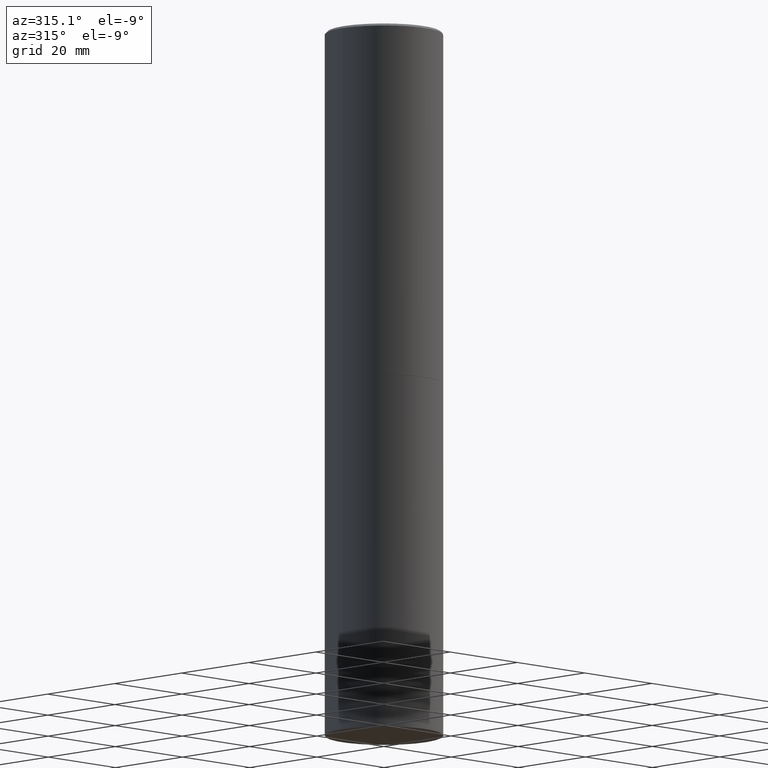
[diagram: clean part render]
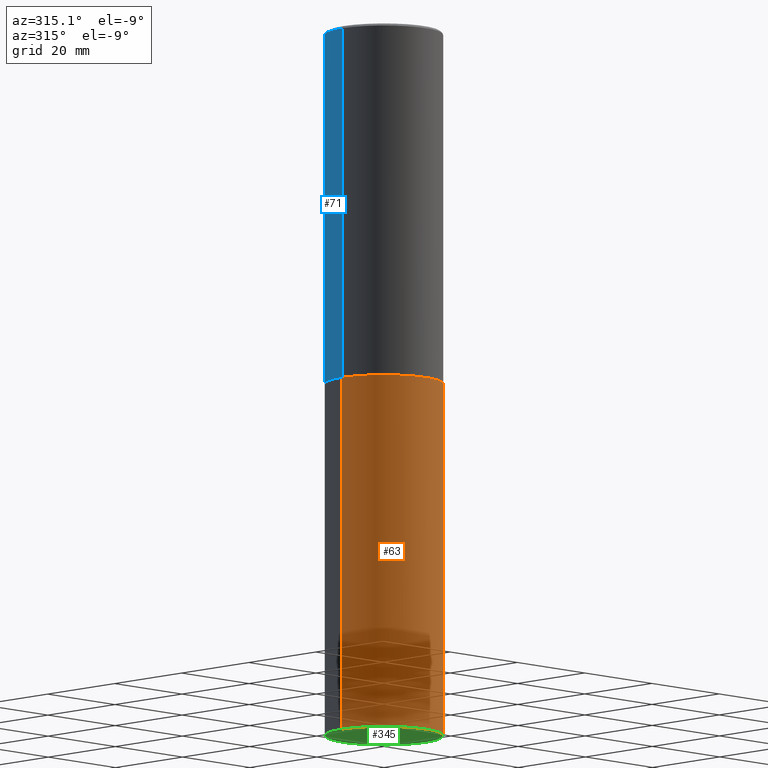
[diagram: same view with three faces highlighted in distinct colors, each labeled with its STEP entity id]
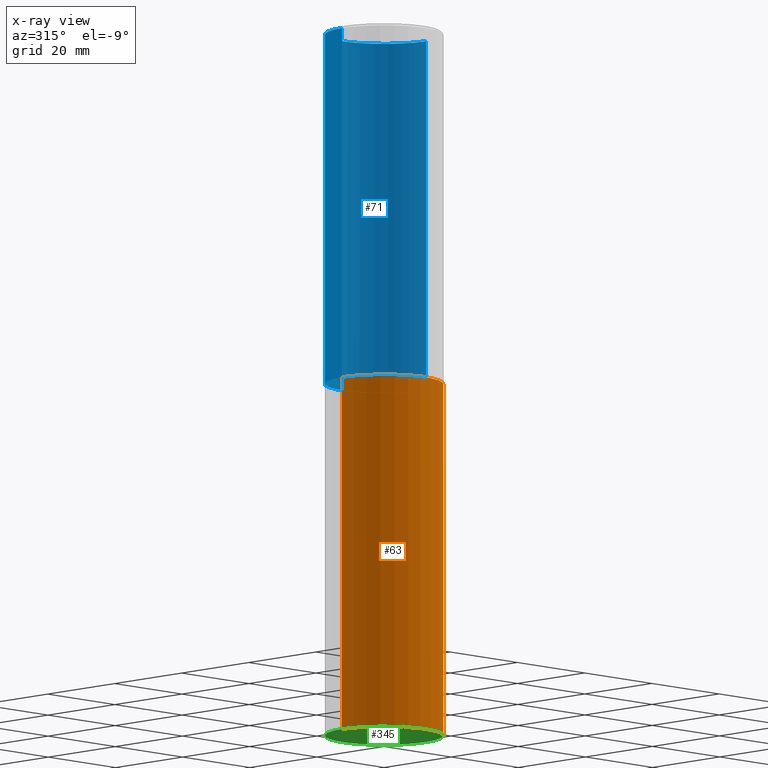
[diagram: x-ray of the same camera — body ghosted, the three highlighted faces saturated]
A machine part, auxiliary view with three faces highlighted in distinct colors.
The next image is the same camera in x-ray (body ghosted, the three faces saturated) — at least one of them is partly hidden behind the body in this view.
Their STEP definitions:

[orange] entity #63 — the highlighted cylindrical surface (partial cylindrical patch) has radius 12.5006 mm, axis along (-0, 0, 1).
#4 = EDGE_CURVE ( 'NONE', #128, #118, #135, .T. ) ;
#5 = DIRECTION ( 'NONE',  ( -2.445468806185136597E-29, 3.491481338843145583E-15, 1.000000000000000000 ) ) ;
#15 = VECTOR ( 'NONE', #223, 39.37007874015748143 ) ;
#18 = CYLINDRICAL_SURFACE ( 'NONE', #160, 0.4921499999999999764 ) ;
#24 = FACE_OUTER_BOUND ( 'NONE', #151, .T. ) ;
#38 = ORIENTED_EDGE ( 'NONE', *, *, #4, .F. ) ;
#43 = ORIENTED_EDGE ( 'NONE', *, *, #287, .T. ) ;
#53 = ORIENTED_EDGE ( 'NONE', *, *, #282, .T. ) ;
#63 = ADVANCED_FACE ( 'NONE', ( #24 ), #18, .T. ) ;
#74 = VERTEX_POINT ( 'NONE', #361 ) ;
#76 = AXIS2_PLACEMENT_3D ( 'NONE', #215, #328, #186 ) ;
#79 = CARTESIAN_POINT ( 'NONE',  ( 7.220735744022852519E-29, -1.030929694920215502E-14, -2.952700000000000102 ) ) ;
#87 = EDGE_CURVE ( 'NONE', #102, #128, #256, .T. ) ;
#102 = VERTEX_POINT ( 'NONE', #339 ) ;
#118 = VERTEX_POINT ( 'NONE', #164 ) ;
#126 = CARTESIAN_POINT ( 'NONE',  ( 0.4921499999999999764, -3.436665081823295777E-15, 2.399810400207969603E-29 ) ) ;
#128 = VERTEX_POINT ( 'NONE', #319 ) ;
#135 = CIRCLE ( 'NONE', #209, 0.4921499999999999764 ) ;
#151 = EDGE_LOOP ( 'NONE', ( #243, #43, #53, #38 ) ) ;
#160 = AXIS2_PLACEMENT_3D ( 'NONE', #216, #330, #304 ) ;
#164 = CARTESIAN_POINT ( 'NONE',  ( 0.4921499999999999764, -1.374596203102545079E-14, -2.952700000000000102 ) ) ;
#183 = DIRECTION ( 'NONE',  ( 1.000000000000000000, -6.982962677686265922E-15, 0.000000000000000000 ) ) ;
#186 = DIRECTION ( 'NONE',  ( 1.000000000000000000, -6.982962677686265922E-15, 0.000000000000000000 ) ) ;
#195 = CIRCLE ( 'NONE', #76, 0.4921499999999999764 ) ;
#209 = AXIS2_PLACEMENT_3D ( 'NONE', #79, #5, #183 ) ;
#215 = CARTESIAN_POINT ( 'NONE',  ( 1.444171603492632270E-28, -2.061894304653819197E-14, -5.905499999999999972 ) ) ;
#216 = CARTESIAN_POINT ( 'NONE',  ( 0.000000000000000000, 0.000000000000000000, 0.000000000000000000 ) ) ;
#223 = DIRECTION ( 'NONE',  ( -2.445468806185136877E-29, 3.491481338843145188E-15, 1.000000000000000000 ) ) ;
#243 = ORIENTED_EDGE ( 'NONE', *, *, #87, .F. ) ;
#256 = LINE ( 'NONE', #366, #15 ) ;
#268 = LINE ( 'NONE', #126, #314 ) ;
#282 = EDGE_CURVE ( 'NONE', #74, #118, #268, .T. ) ;
#287 = EDGE_CURVE ( 'NONE', #102, #74, #195, .T. ) ;
#304 = DIRECTION ( 'NONE',  ( 1.000000000000000000, -6.982962677686265922E-15, 4.876176775795935793E-29 ) ) ;
#314 = VECTOR ( 'NONE', #353, 39.37007874015748143 ) ;
#319 = CARTESIAN_POINT ( 'NONE',  ( -0.4921499999999999764, -1.196718392382684217E-14, -2.952700000000000102 ) ) ;
#328 = DIRECTION ( 'NONE',  ( -2.445468806185136597E-29, 3.491481338843145583E-15, 1.000000000000000000 ) ) ;
#330 = DIRECTION ( 'NONE',  ( -2.445468806185136597E-29, 3.491481338843145583E-15, 1.000000000000000000 ) ) ;
#339 = CARTESIAN_POINT ( 'NONE',  ( -0.4921499999999999764, -1.196718392382684217E-14, -5.905499999999999972 ) ) ;
#353 = DIRECTION ( 'NONE',  ( -2.445468806185136877E-29, 3.491481338843145188E-15, 1.000000000000000000 ) ) ;
#361 = CARTESIAN_POINT ( 'NONE',  ( 0.4921499999999999764, -2.405560812836148932E-14, -5.905499999999999972 ) ) ;
#366 = CARTESIAN_POINT ( 'NONE',  ( -0.4921499999999999764, 3.496936074043332897E-15, -2.420853904668951509E-29 ) ) ;

[blue] entity #71 — the highlighted cylindrical surface (partial cylindrical patch) has radius 12.5006 mm, axis along (-0, 0, 1).
#3 = DIRECTION ( 'NONE',  ( -2.445468806185136597E-29, 3.491481338843145583E-15, 1.000000000000000000 ) ) ;
#6 = VECTOR ( 'NONE', #357, 39.37007874015748143 ) ;
#21 = CARTESIAN_POINT ( 'NONE',  ( -0.4921499999999999764, -1.690881473276754954E-15, -2.951700000000000212 ) ) ;
#31 = AXIS2_PLACEMENT_3D ( 'NONE', #313, #310, #137 ) ;
#34 = FACE_OUTER_BOUND ( 'NONE', #47, .T. ) ;
#37 = CARTESIAN_POINT ( 'NONE',  ( 7.218290275216666916E-29, -1.030580546786331359E-14, -2.951700000000000212 ) ) ;
#47 = EDGE_LOOP ( 'NONE', ( #316, #274, #343, #166 ) ) ;
#54 = EDGE_CURVE ( 'NONE', #163, #348, #326, .T. ) ;
#59 = CARTESIAN_POINT ( 'NONE',  ( 4.890937612370299433E-31, -6.982962677686328587E-17, -0.02000000000000010797 ) ) ;
#61 = CYLINDRICAL_SURFACE ( 'NONE', #31, 0.4921499999999998098 ) ;
#71 = ADVANCED_FACE ( 'NONE', ( #34 ), #61, .T. ) ;
#81 = EDGE_CURVE ( 'NONE', #356, #348, #194, .T. ) ;
#105 = DIRECTION ( 'NONE',  ( -2.445468806185136597E-29, 3.491481338843145583E-15, 1.000000000000000000 ) ) ;
#133 = EDGE_CURVE ( 'NONE', #257, #163, #331, .T. ) ;
#137 = DIRECTION ( 'NONE',  ( 1.000000000000000000, -6.982962677686265922E-15, 4.876176775795935793E-29 ) ) ;
#138 = EDGE_CURVE ( 'NONE', #257, #356, #291, .T. ) ;
#148 = CARTESIAN_POINT ( 'NONE',  ( -0.4921499999999998098, 3.496936074043331714E-15, -2.420853904668950949E-29 ) ) ;
#163 = VERTEX_POINT ( 'NONE', #21 ) ;
#166 = ORIENTED_EDGE ( 'NONE', *, *, #138, .F. ) ;
#168 = CARTESIAN_POINT ( 'NONE',  ( -0.4921499999999996988, 3.366835455046430506E-15, -0.02000000000000010797 ) ) ;
#169 = AXIS2_PLACEMENT_3D ( 'NONE', #37, #3, #176 ) ;
#176 = DIRECTION ( 'NONE',  ( 1.000000000000000000, -6.982962677686265922E-15, 0.000000000000000000 ) ) ;
#194 = CIRCLE ( 'NONE', #219, 0.4921499999999996988 ) ;
#218 = CARTESIAN_POINT ( 'NONE',  ( 0.4921499999999999764, -1.374247054968660936E-14, -2.951700000000000212 ) ) ;
#219 = AXIS2_PLACEMENT_3D ( 'NONE', #59, #105, #231 ) ;
#231 = DIRECTION ( 'NONE',  ( 1.000000000000000000, -6.982962677686265922E-15, 0.000000000000000000 ) ) ;
#236 = CARTESIAN_POINT ( 'NONE',  ( 0.4921499999999998098, -3.436665081823294593E-15, 2.399810400207968762E-29 ) ) ;
#251 = VECTOR ( 'NONE', #271, 39.37007874015748143 ) ;
#257 = VERTEX_POINT ( 'NONE', #218 ) ;
#271 = DIRECTION ( 'NONE',  ( -2.445468806185136877E-29, 3.491481338843145188E-15, 1.000000000000000000 ) ) ;
#274 = ORIENTED_EDGE ( 'NONE', *, *, #54, .T. ) ;
#286 = CARTESIAN_POINT ( 'NONE',  ( 0.4921499999999996988, -3.446223716380120377E-15, -0.02000000000000010797 ) ) ;
#291 = LINE ( 'NONE', #236, #6 ) ;
#310 = DIRECTION ( 'NONE',  ( -2.445468806185136597E-29, 3.491481338843145583E-15, 1.000000000000000000 ) ) ;
#313 = CARTESIAN_POINT ( 'NONE',  ( 0.000000000000000000, 0.000000000000000000, 0.000000000000000000 ) ) ;
#316 = ORIENTED_EDGE ( 'NONE', *, *, #133, .T. ) ;
#326 = LINE ( 'NONE', #148, #251 ) ;
#331 = CIRCLE ( 'NONE', #169, 0.4921499999999999764 ) ;
#343 = ORIENTED_EDGE ( 'NONE', *, *, #81, .F. ) ;
#348 = VERTEX_POINT ( 'NONE', #168 ) ;
#356 = VERTEX_POINT ( 'NONE', #286 ) ;
#357 = DIRECTION ( 'NONE',  ( -2.445468806185136877E-29, 3.491481338843145188E-15, 1.000000000000000000 ) ) ;

[green] entity #345 — the highlighted planar face has unit normal (0, -0, -1).
#30 = CARTESIAN_POINT ( 'NONE',  ( 1.444171603492632270E-28, -2.061894304653819197E-14, -5.905499999999999972 ) ) ;
#50 = CIRCLE ( 'NONE', #140, 0.4921499999999999764 ) ;
#74 = VERTEX_POINT ( 'NONE', #361 ) ;
#75 = EDGE_CURVE ( 'NONE', #74, #102, #50, .T. ) ;
#76 = AXIS2_PLACEMENT_3D ( 'NONE', #215, #328, #186 ) ;
#82 = FACE_OUTER_BOUND ( 'NONE', #213, .T. ) ;
#102 = VERTEX_POINT ( 'NONE', #339 ) ;
#140 = AXIS2_PLACEMENT_3D ( 'NONE', #30, #359, #227 ) ;
#173 = ORIENTED_EDGE ( 'NONE', *, *, #287, .F. ) ;
#186 = DIRECTION ( 'NONE',  ( 1.000000000000000000, -6.982962677686265922E-15, 0.000000000000000000 ) ) ;
#195 = CIRCLE ( 'NONE', #76, 0.4921499999999999764 ) ;
#196 = DIRECTION ( 'NONE',  ( -1.000000000000000000, 6.982962677686265922E-15, -4.876176775795935793E-29 ) ) ;
#198 = CARTESIAN_POINT ( 'NONE',  ( 3.436665081823440533E-15, 0.4921499999999793262, -5.905500000000001748 ) ) ;
#213 = EDGE_LOOP ( 'NONE', ( #307, #173 ) ) ;
#215 = CARTESIAN_POINT ( 'NONE',  ( 1.444171603492632270E-28, -2.061894304653819197E-14, -5.905499999999999972 ) ) ;
#227 = DIRECTION ( 'NONE',  ( 1.000000000000000000, -6.982962677686265922E-15, 0.000000000000000000 ) ) ;
#230 = DIRECTION ( 'NONE',  ( 2.438088387897960049E-29, -3.491481338843145188E-15, -1.000000000000000000 ) ) ;
#287 = EDGE_CURVE ( 'NONE', #102, #74, #195, .T. ) ;
#307 = ORIENTED_EDGE ( 'NONE', *, *, #75, .F. ) ;
#328 = DIRECTION ( 'NONE',  ( -2.445468806185136597E-29, 3.491481338843145583E-15, 1.000000000000000000 ) ) ;
#338 = PLANE ( 'NONE',  #342 ) ;
#339 = CARTESIAN_POINT ( 'NONE',  ( -0.4921499999999999764, -1.196718392382684217E-14, -5.905499999999999972 ) ) ;
#342 = AXIS2_PLACEMENT_3D ( 'NONE', #198, #230, #196 ) ;
#345 = ADVANCED_FACE ( 'NONE', ( #82 ), #338, .T. ) ;
#359 = DIRECTION ( 'NONE',  ( -2.445468806185136597E-29, 3.491481338843145583E-15, 1.000000000000000000 ) ) ;
#361 = CARTESIAN_POINT ( 'NONE',  ( 0.4921499999999999764, -2.405560812836148932E-14, -5.905499999999999972 ) ) ;